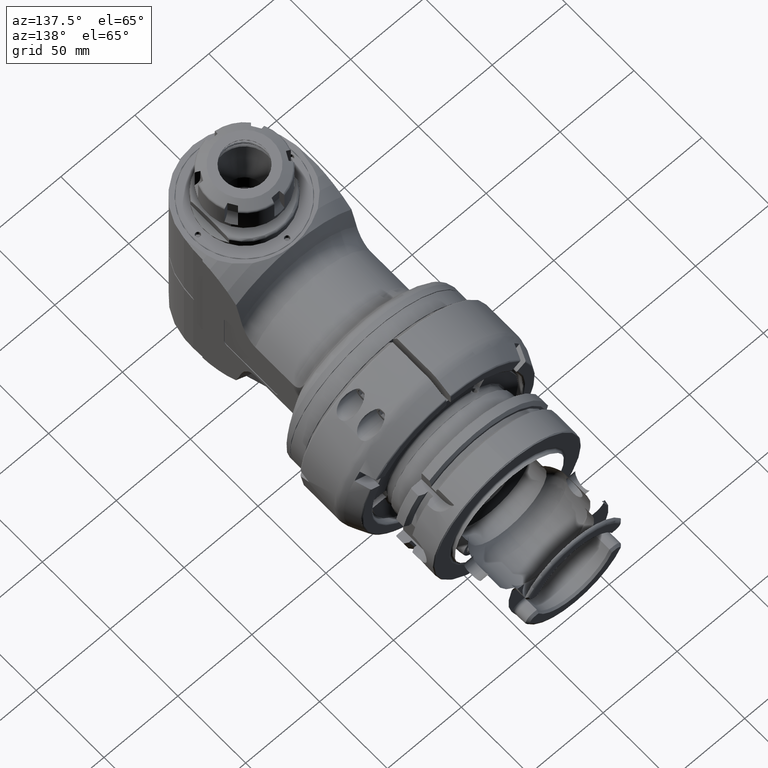
[diagram: clean part render]
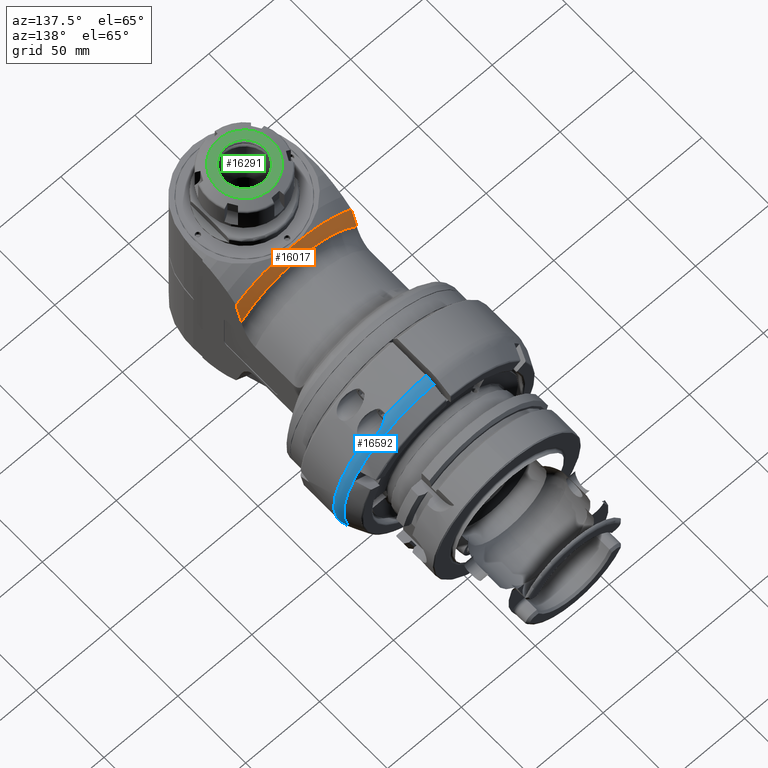
[diagram: same view with three faces highlighted in distinct colors, each labeled with its STEP entity id]
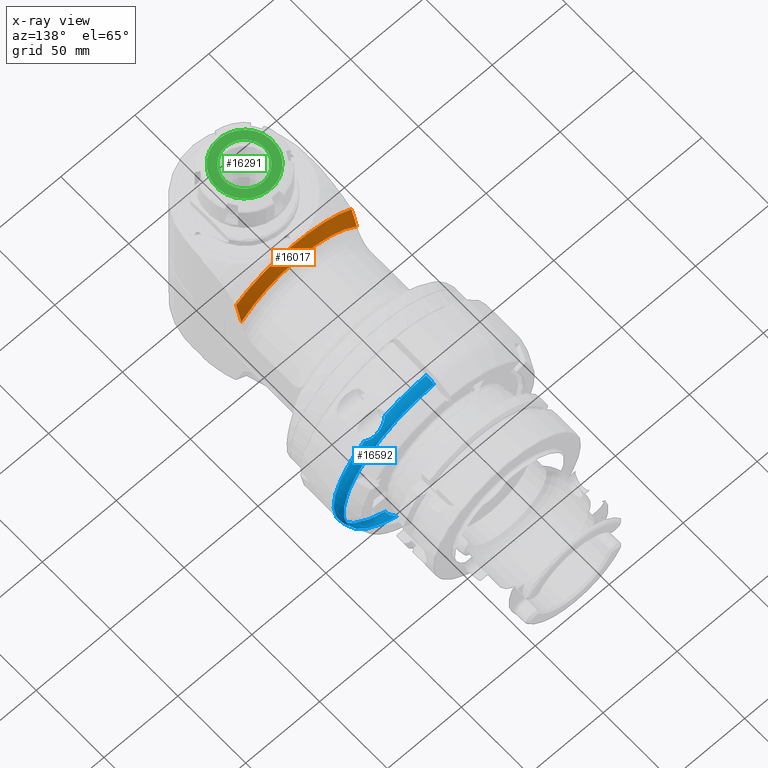
[diagram: x-ray of the same camera — body ghosted, the three highlighted faces saturated]
A machine part, auxiliary view with three faces highlighted in distinct colors.
The next image is the same camera in x-ray (body ghosted, the three faces saturated) — at least one of them is partly hidden behind the body in this view.
Their STEP definitions:

[orange] entity #16017 — the highlighted conical surface has half-angle 68 deg.
#112=(
BOUNDED_CURVE()
B_SPLINE_CURVE(2,(#23726,#23727,#23728),.UNSPECIFIED.,.F.,.F.)
B_SPLINE_CURVE_WITH_KNOTS((3,3),(4.52334172604886,6.36262635387407),
 .UNSPECIFIED.)
CURVE()
GEOMETRIC_REPRESENTATION_ITEM()
RATIONAL_B_SPLINE_CURVE((1.65245227147019,1.75473892916687,1.83233259821975))
REPRESENTATION_ITEM('')
);
#134=(
BOUNDED_CURVE()
B_SPLINE_CURVE(2,(#24100,#24101,#24102),.UNSPECIFIED.,.F.,.F.)
B_SPLINE_CURVE_WITH_KNOTS((3,3),(18.5610515989546,20.4507038080156),
 .UNSPECIFIED.)
CURVE()
GEOMETRIC_REPRESENTATION_ITEM()
RATIONAL_B_SPLINE_CURVE((1.88075550848695,1.80111127761484,1.69612149842362))
REPRESENTATION_ITEM('')
);
#866=CONICAL_SURFACE('',#17037,54.18966373621,1.18682389135614);
#3450=CIRCLE('',#17036,49.37932747243);
#3451=CIRCLE('',#17038,59.);
#3452=CIRCLE('',#17039,59.);
#4276=FACE_OUTER_BOUND('',#5205,.T.);
#5205=EDGE_LOOP('',(#10918,#10919,#10920,#10921,#10922));
#6562=VERTEX_POINT('',#23708);
#6563=VERTEX_POINT('',#23725);
#6619=VERTEX_POINT('',#24095);
#6620=VERTEX_POINT('',#24099);
#6630=VERTEX_POINT('',#24140);
#8285=EDGE_CURVE('',#6563,#6562,#112,.T.);
#8352=EDGE_CURVE('',#6620,#6619,#134,.T.);
#8363=EDGE_CURVE('',#6620,#6562,#3450,.T.);
#8364=EDGE_CURVE('',#6630,#6619,#3451,.T.);
#8365=EDGE_CURVE('',#6563,#6630,#3452,.T.);
#10918=ORIENTED_EDGE('',*,*,#8363,.F.);
#10919=ORIENTED_EDGE('',*,*,#8352,.T.);
#10920=ORIENTED_EDGE('',*,*,#8364,.F.);
#10921=ORIENTED_EDGE('',*,*,#8365,.F.);
#10922=ORIENTED_EDGE('',*,*,#8285,.T.);
#16017=ADVANCED_FACE('',(#4276),#866,.T.);
#17036=AXIS2_PLACEMENT_3D('',#24138,#18935,#18936);
#17037=AXIS2_PLACEMENT_3D('',#24139,#18937,#18938);
#17038=AXIS2_PLACEMENT_3D('',#24141,#18939,#18940);
#17039=AXIS2_PLACEMENT_3D('',#24142,#18941,#18942);
#18935=DIRECTION('center_axis',(-1.,0.,0.));
#18936=DIRECTION('ref_axis',(0.,-0.613359057199422,-0.789804195324028));
#18937=DIRECTION('center_axis',(1.,0.,0.));
#18938=DIRECTION('ref_axis',(0.,-1.,3.04080128452329E-12));
#18939=DIRECTION('center_axis',(1.,0.,0.));
#18940=DIRECTION('ref_axis',(0.,-1.,3.229604763914E-14));
#18941=DIRECTION('center_axis',(1.,0.,0.));
#18942=DIRECTION('ref_axis',(0.,-0.750372100090502,0.661015666535802));
#23708=CARTESIAN_POINT('',(69.77942871497,-30.28725774363,39.));
#23725=CARTESIAN_POINT('',(73.6664327750179,-44.2718873437757,38.9999999706286));
#23726=CARTESIAN_POINT('Ctrl Pts',(73.6664327585411,-44.2718873487797,39.));
#23727=CARTESIAN_POINT('Ctrl Pts',(71.3583992512738,-36.6588751030009,39.));
#23728=CARTESIAN_POINT('Ctrl Pts',(69.7794287148711,-30.2872577432498,39.));
#24095=CARTESIAN_POINT('',(73.6664327750179,-44.2718873437757,-38.9999999706286));
#24099=CARTESIAN_POINT('',(69.77942871497,-30.28725774363,-39.));
#24100=CARTESIAN_POINT('Ctrl Pts',(69.7794287151423,-30.2872577443441,-39.));
#24101=CARTESIAN_POINT('Ctrl Pts',(71.3583992514687,-36.6588751036438,-39.));
#24102=CARTESIAN_POINT('Ctrl Pts',(73.6664327585411,-44.2718873487798,-39.));
#24138=CARTESIAN_POINT('Origin',(69.77942871497,0.,0.));
#24139=CARTESIAN_POINT('Origin',(71.72293072062,0.,0.));
#24140=CARTESIAN_POINT('',(73.66643272628,-59.,4.454097402191E-14));
#24141=CARTESIAN_POINT('Origin',(73.66643272628,0.,0.));
#24142=CARTESIAN_POINT('Origin',(73.66643272628,0.,0.));

[blue] entity #16592 — the highlighted toroidal blend (fillet) surface has major radius 50 mm and minor (blend) radius 14 mm.
#80=TOROIDAL_SURFACE('',#18180,50.,14.);
#3865=CIRCLE('',#17935,64.);
#3866=CIRCLE('',#17936,64.);
#3985=CIRCLE('',#18155,62.68830901851);
#4851=FACE_OUTER_BOUND('',#5883,.T.);
#5883=EDGE_LOOP('',(#14138,#14139,#14140,#14141,#14142,#14143));
#6383=B_SPLINE_CURVE_WITH_KNOTS('',3,(#29985,#29986,#29987,#29988,#29989,
#29990,#29991,#29992,#29993,#29994,#29995,#29996,#29997,#29998,#29999,#30000,
#30001,#30002,#30003,#30004,#30005,#30006,#30007,#30008,#30009,#30010,#30011,
#30012,#30013,#30014,#30015,#30016,#30017,#30018,#30019,#30020,#30021,#30022,
#30023,#30024,#30025,#30026,#30027,#30028,#30029,#30030,#30031,#30032,#30033),
 .UNSPECIFIED.,.F.,.F.,(4,3,3,3,3,3,3,3,3,3,3,3,3,3,3,3,4),(0.,0.06666666666667,
0.1333333333333,0.2,0.2666666666667,0.3333333333333,0.4,0.4666666666667,
0.5333333333333,0.6,0.6666666666667,0.7333333333333,0.795427906062958,0.8,
0.8666666666667,0.9333333333333,1.),.UNSPECIFIED.);
#6386=B_SPLINE_CURVE_WITH_KNOTS('',3,(#30143,#30144,#30145,#30146,#30147,
#30148,#30149,#30150),.UNSPECIFIED.,.F.,.F.,(4,2,2,4),(-0.578261082100965,
-0.518283485513452,-0.259141742756726,0.),.UNSPECIFIED.);
#6387=B_SPLINE_CURVE_WITH_KNOTS('',3,(#30151,#30152,#30153,#30154,#30155,
#30156,#30157,#30158,#30159,#30160,#30161,#30162,#30163,#30164,#30165,#30166,
#30167,#30168,#30169,#30170),.UNSPECIFIED.,.F.,.F.,(4,2,2,2,2,2,2,2,2,4),
(-5.59126527292837,-5.41145791580762,-5.01941152464477,-4.8061158795738,
-4.65072475112197,-4.50013807330009,-4.30809731115409,-4.00546240605901,
-3.72851748218313,-3.6652591923682),.UNSPECIFIED.);
#7532=VERTEX_POINT('',#27752);
#7533=VERTEX_POINT('',#27754);
#7535=VERTEX_POINT('',#27763);
#7536=VERTEX_POINT('',#27790);
#7745=VERTEX_POINT('',#29860);
#7746=VERTEX_POINT('',#29871);
#9647=EDGE_CURVE('',#7533,#7532,#3865,.T.);
#9650=EDGE_CURVE('',#7536,#7535,#3866,.T.);
#9950=EDGE_CURVE('',#7746,#7745,#3985,.T.);
#9975=EDGE_CURVE('',#7532,#7746,#6383,.T.);
#9986=EDGE_CURVE('',#7745,#7536,#6386,.T.);
#9987=EDGE_CURVE('',#7535,#7533,#6387,.T.);
#14138=ORIENTED_EDGE('',*,*,#9950,.T.);
#14139=ORIENTED_EDGE('',*,*,#9986,.T.);
#14140=ORIENTED_EDGE('',*,*,#9650,.T.);
#14141=ORIENTED_EDGE('',*,*,#9987,.T.);
#14142=ORIENTED_EDGE('',*,*,#9647,.T.);
#14143=ORIENTED_EDGE('',*,*,#9975,.T.);
#16592=ADVANCED_FACE('',(#4851),#80,.T.);
#17935=AXIS2_PLACEMENT_3D('',#27755,#21387,#21388);
#17936=AXIS2_PLACEMENT_3D('',#27791,#21389,#21390);
#18155=AXIS2_PLACEMENT_3D('',#29872,#21967,#21968);
#18180=AXIS2_PLACEMENT_3D('',#30142,#22037,#22038);
#21387=DIRECTION('center_axis',(0.,1.,0.));
#21388=DIRECTION('ref_axis',(0.676128638662391,0.,0.73678359372379));
#21389=DIRECTION('center_axis',(0.,1.,0.));
#21390=DIRECTION('ref_axis',(0.0234374975961501,0.,0.999725304124303));
#21967=DIRECTION('center_axis',(0.,-1.,0.));
#21968=DIRECTION('ref_axis',(0.416227625267496,0.,-0.90926044891669));
#22037=DIRECTION('center_axis',(0.,-1.,0.));
#22038=DIRECTION('ref_axis',(0.,0.,1.));
#27752=CARTESIAN_POINT('',(29.10326442171,27.60148642943,-57.));
#27754=CARTESIAN_POINT('',(43.27223287439,27.60148642943,47.15414999832));
#27755=CARTESIAN_POINT('Origin',(0.,27.60148642943,0.));
#27763=CARTESIAN_POINT('',(29.40321820789,27.60148642943,56.84585085139));
#27790=CARTESIAN_POINT('',(1.49999983933669,27.60148642943,63.9824194641161));
#27791=CARTESIAN_POINT('Origin',(0.,27.60148642943,0.));
#29860=CARTESIAN_POINT('',(1.49999987294062,33.5181468910144,62.670358284432));
#29871=CARTESIAN_POINT('',(26.09260599481,33.5181420938,-57.));
#29872=CARTESIAN_POINT('Origin',(0.,33.5181420938,0.));
#29985=CARTESIAN_POINT('Ctrl Pts',(29.1032644217101,27.60148642943,-57.0000000000002));
#29986=CARTESIAN_POINT('Ctrl Pts',(29.1032644217101,27.72803539829,-57.0000000000002));
#29987=CARTESIAN_POINT('Ctrl Pts',(29.099491827264,27.8547348469019,-57.0000002370057));
#29988=CARTESIAN_POINT('Ctrl Pts',(29.0919142491006,27.9815773509093,-57.0000000000011));
#29989=CARTESIAN_POINT('Ctrl Pts',(29.0843366709371,28.1084198549166,-56.9999997629966));
#29990=CARTESIAN_POINT('Ctrl Pts',(29.0729542416667,28.2354054011224,-56.9999993109964));
#29991=CARTESIAN_POINT('Ctrl Pts',(29.0577110731971,28.3625563175532,-57.0000000000008));
#29992=CARTESIAN_POINT('Ctrl Pts',(29.0424679047274,28.4897072339842,-57.0000006890051));
#29993=CARTESIAN_POINT('Ctrl Pts',(29.0233634011575,28.6170234837434,-57.0000013524769));
#29994=CARTESIAN_POINT('Ctrl Pts',(29.0003612185054,28.7443823651134,-57.0000000000008));
#29995=CARTESIAN_POINT('Ctrl Pts',(28.9773590358532,28.8717412464834,-56.9999986475246));
#29996=CARTESIAN_POINT('Ctrl Pts',(28.9504611729302,28.9991431170501,-56.999999206901));
#29997=CARTESIAN_POINT('Ctrl Pts',(28.9194996926566,29.1269377949919,-57.0000000000001));
#29998=CARTESIAN_POINT('Ctrl Pts',(28.8885382123831,29.2547324729334,-57.0000007930991));
#29999=CARTESIAN_POINT('Ctrl Pts',(28.8535122036688,29.3829196957682,-57.0000000204652));
#30000=CARTESIAN_POINT('Ctrl Pts',(28.8142244701064,29.5116139114497,-56.9999999999993));
#30001=CARTESIAN_POINT('Ctrl Pts',(28.7749367365439,29.6403081271314,-56.9999999795334));
#30002=CARTESIAN_POINT('Ctrl Pts',(28.7313865762774,29.7695091246521,-56.9999993226535));
#30003=CARTESIAN_POINT('Ctrl Pts',(28.6834000950944,29.8991550903548,-56.9999999999988));
#30004=CARTESIAN_POINT('Ctrl Pts',(28.6354136139114,30.0288010560575,-57.000000677344));
#30005=CARTESIAN_POINT('Ctrl Pts',(28.5829901854062,30.1588918060915,-57.0000014519865));
#30006=CARTESIAN_POINT('Ctrl Pts',(28.5260265028633,30.2892203292485,-57.));
#30007=CARTESIAN_POINT('Ctrl Pts',(28.4690628203204,30.4195488524054,-56.9999985480135));
#30008=CARTESIAN_POINT('Ctrl Pts',(28.4075611478068,30.5501161401972,-56.9999993932051));
#30009=CARTESIAN_POINT('Ctrl Pts',(28.3411569165049,30.6812163343881,-56.9999999999997));
#30010=CARTESIAN_POINT('Ctrl Pts',(28.2747526852029,30.8123165285791,-57.0000006067943));
#30011=CARTESIAN_POINT('Ctrl Pts',(28.2034453929929,30.9439493228172,-56.9999999555166));
#30012=CARTESIAN_POINT('Ctrl Pts',(28.1268385045003,31.0762574385918,-57.0000000000006));
#30013=CARTESIAN_POINT('Ctrl Pts',(28.0502316160078,31.2085655543665,-57.0000000444847));
#30014=CARTESIAN_POINT('Ctrl Pts',(27.9683243632784,31.3415485400289,-56.9999992262998));
#30015=CARTESIAN_POINT('Ctrl Pts',(27.8807719939285,31.4751528555487,-57.0000000000005));
#30016=CARTESIAN_POINT('Ctrl Pts',(27.7932196245787,31.6087571710683,-57.0000007737012));
#30017=CARTESIAN_POINT('Ctrl Pts',(27.7000214687335,31.7429824490341,-57.0000017881225));
#30018=CARTESIAN_POINT('Ctrl Pts',(27.6009276309916,31.8776243709963,-56.9999999999996));
#30019=CARTESIAN_POINT('Ctrl Pts',(27.5086297882706,32.0030323602326,-56.9999983345087));
#30020=CARTESIAN_POINT('Ctrl Pts',(27.4112191775521,32.1288030924962,-56.9999978890117));
#30021=CARTESIAN_POINT('Ctrl Pts',(27.3081530352393,32.2551477494686,-56.9999996511221));
#30022=CARTESIAN_POINT('Ctrl Pts',(27.3005641580851,32.2644506501044,-56.9999997808683));
#30023=CARTESIAN_POINT('Ctrl Pts',(27.2929446157087,32.2737566547726,-56.9999999005628));
#30024=CARTESIAN_POINT('Ctrl Pts',(27.2852941898086,32.2830658441069,-57.0000000000005));
#30025=CARTESIAN_POINT('Ctrl Pts',(27.1737417150859,32.4188050985553,-57.0000014499228));
#30026=CARTESIAN_POINT('Ctrl Pts',(27.0556221193565,32.5552217902423,-57.000000286561));
#30027=CARTESIAN_POINT('Ctrl Pts',(26.9304920098512,32.6921641947516,-56.9999999999994));
#30028=CARTESIAN_POINT('Ctrl Pts',(26.8053619003461,32.8291065992607,-56.9999997134378));
#30029=CARTESIAN_POINT('Ctrl Pts',(26.6732209360948,32.9665744501654,-56.9999995951293));
#30030=CARTESIAN_POINT('Ctrl Pts',(26.5336809351868,33.104335429448,-56.9999999999997));
#30031=CARTESIAN_POINT('Ctrl Pts',(26.3941409342785,33.2420964087309,-57.0000004048702));
#30032=CARTESIAN_POINT('Ctrl Pts',(26.2472012782296,33.3801498764995,-56.9999999999991));
#30033=CARTESIAN_POINT('Ctrl Pts',(26.0926059948105,33.5181420938006,-57.0000000000011));
#30142=CARTESIAN_POINT('Origin',(0.,27.60148642943,0.));
#30143=CARTESIAN_POINT('Ctrl Pts',(1.499999846154,33.5181468913146,62.6703582850754));
#30144=CARTESIAN_POINT('Ctrl Pts',(1.499999846154,33.3301620800891,62.7580422337813));
#30145=CARTESIAN_POINT('Ctrl Pts',(1.499999846154,33.1431551243573,62.8401665469499));
#30146=CARTESIAN_POINT('Ctrl Pts',(1.499999846154,32.1604176457997,63.2472917950132));
#30147=CARTESIAN_POINT('Ctrl Pts',(1.499999846154,31.2562402607336,63.5296152390965));
#30148=CARTESIAN_POINT('Ctrl Pts',(1.499999846154,29.4086775980864,63.8971792793686));
#30149=CARTESIAN_POINT('Ctrl Pts',(1.499999846154,28.4652922386191,63.9824194639554));
#30150=CARTESIAN_POINT('Ctrl Pts',(1.499999846154,27.60148642943,63.9824194639554));
#30151=CARTESIAN_POINT('Ctrl Pts',(29.4032182078904,27.6014864294329,56.8458508513962));
#30152=CARTESIAN_POINT('Ctrl Pts',(29.8076874677309,27.9911860580763,56.6366412481031));
#30153=CARTESIAN_POINT('Ctrl Pts',(30.2382319509035,28.3375737728236,56.3902665536087));
#30154=CARTESIAN_POINT('Ctrl Pts',(31.6473054576734,29.3024308195133,55.5380751519686));
#30155=CARTESIAN_POINT('Ctrl Pts',(32.6873701866815,29.770414054224,54.8448245002645));
#30156=CARTESIAN_POINT('Ctrl Pts',(34.299662659365,30.23372576092,53.7423188278186));
#30157=CARTESIAN_POINT('Ctrl Pts',(34.8731083441685,30.3485415128391,53.3442767277015));
#30158=CARTESIAN_POINT('Ctrl Pts',(35.8587218657368,30.4688522160503,52.654739218676));
#30159=CARTESIAN_POINT('Ctrl Pts',(36.2737942403846,30.4957284249186,52.3626368646265));
#30160=CARTESIAN_POINT('Ctrl Pts',(37.0836366470068,30.5032132299807,51.7901591659091));
#30161=CARTESIAN_POINT('Ctrl Pts',(37.4804498332588,30.4852402280462,51.5084123929797));
#30162=CARTESIAN_POINT('Ctrl Pts',(38.3711963323611,30.3953186018388,50.8731172064923));
#30163=CARTESIAN_POINT('Ctrl Pts',(38.8670412330506,30.3093229629898,50.5174312980179));
#30164=CARTESIAN_POINT('Ctrl Pts',(40.1095346245886,29.9919205791492,49.6186626233933));
#30165=CARTESIAN_POINT('Ctrl Pts',(40.8651202961719,29.6976898955135,49.0650289432059));
#30166=CARTESIAN_POINT('Ctrl Pts',(42.1590532348773,28.908409477657,48.0838292404558));
#30167=CARTESIAN_POINT('Ctrl Pts',(42.6650846264073,28.4596195395379,47.6833955490209));
#30168=CARTESIAN_POINT('Ctrl Pts',(43.1200976986044,27.8452711958828,47.2912004596569));
#30169=CARTESIAN_POINT('Ctrl Pts',(43.1994559698814,27.7258895688707,47.2209356186765));
#30170=CARTESIAN_POINT('Ctrl Pts',(43.272232874393,27.6014864294305,47.1541499983225));

[green] entity #16291 — the highlighted planar face has unit normal (0, -0, 1).
#341=FACE_BOUND('',#5510,.T.);
#584=PLANE('',#17560);
#3682=CIRCLE('',#17522,18.93782217351);
#3683=CIRCLE('',#17561,13.5);
#4550=FACE_OUTER_BOUND('',#5509,.T.);
#5509=EDGE_LOOP('',(#12316));
#5510=EDGE_LOOP('',(#12317));
#7051=VERTEX_POINT('',#26138);
#7062=VERTEX_POINT('',#26292);
#9013=EDGE_CURVE('',#7051,#7051,#3682,.T.);
#9050=EDGE_CURVE('',#7062,#7062,#3683,.T.);
#12316=ORIENTED_EDGE('',*,*,#9013,.T.);
#12317=ORIENTED_EDGE('',*,*,#9050,.T.);
#16291=ADVANCED_FACE('',(#4550,#341),#584,.T.);
#17522=AXIS2_PLACEMENT_3D('',#26140,#20157,#20158);
#17560=AXIS2_PLACEMENT_3D('',#26291,#20248,#20249);
#17561=AXIS2_PLACEMENT_3D('',#26293,#20250,#20251);
#20157=DIRECTION('center_axis',(0.,-1.,0.));
#20158=DIRECTION('ref_axis',(0.529933890699467,0.,-0.848038956350547));
#20248=DIRECTION('center_axis',(0.,-1.,0.));
#20249=DIRECTION('ref_axis',(0.529933890699467,0.,-0.848038956350547));
#20250=DIRECTION('center_axis',(0.,1.,0.));
#20251=DIRECTION('ref_axis',(0.848038956350547,0.,0.529933890699467));
#26138=CARTESIAN_POINT('',(120.0357937858,-96.5,-16.06001095157));
#26140=CARTESIAN_POINT('Origin',(110.,-96.5,6.590648399224E-14));
#26291=CARTESIAN_POINT('Origin',(101.3388076085,-96.5,13.8602733007));
#26292=CARTESIAN_POINT('',(98.55147408927,-96.5,-7.154107524443));
#26293=CARTESIAN_POINT('Origin',(110.,-96.5,8.59329596256E-14));